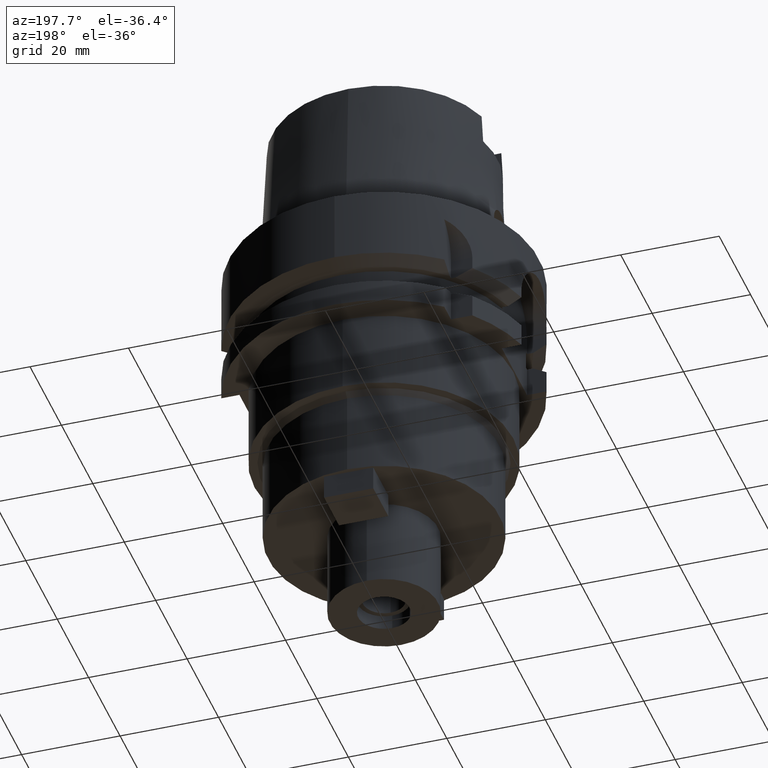
[diagram: clean part render]
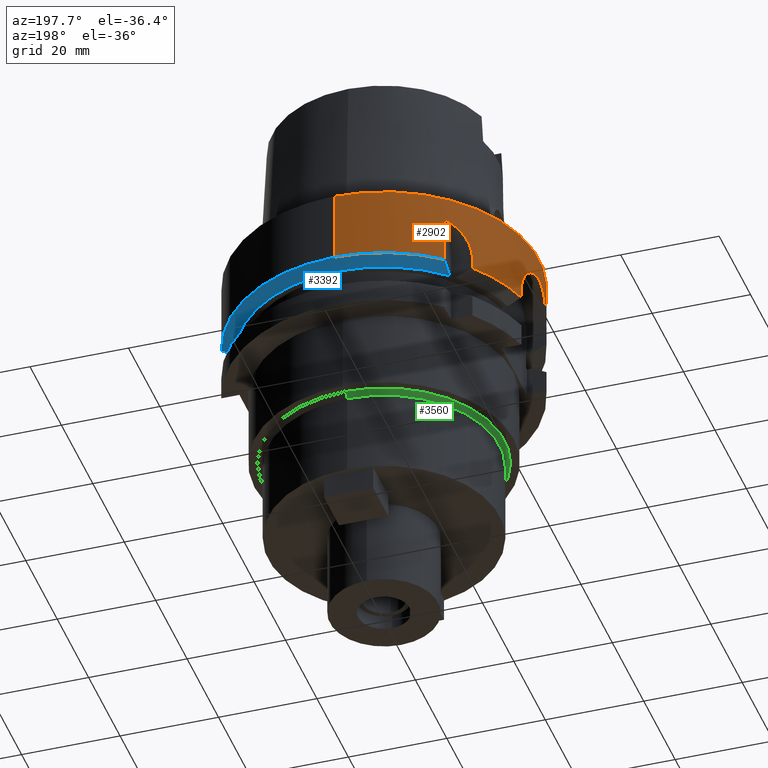
[diagram: same view with three faces highlighted in distinct colors, each labeled with its STEP entity id]
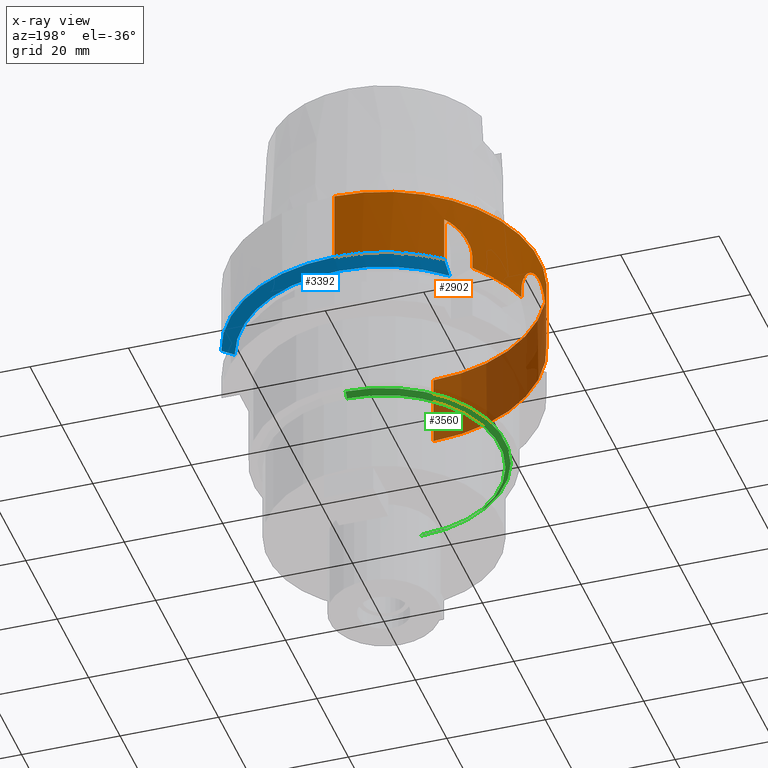
[diagram: x-ray of the same camera — body ghosted, the three highlighted faces saturated]
A machine part, auxiliary view with three faces highlighted in distinct colors.
The next image is the same camera in x-ray (body ghosted, the three faces saturated) — at least one of them is partly hidden behind the body in this view.
Their STEP definitions:

[orange] entity #2902 — the highlighted cylindrical surface (partial cylindrical patch) has radius 31.5 mm, axis along (0, 0, -1).
#595=CARTESIAN_POINT('',(0.E0,1.683889348828E-14,0.E0));
#596=DIRECTION('',(0.E0,0.E0,-1.E0));
#597=DIRECTION('',(0.E0,-1.E0,0.E0));
#598=AXIS2_PLACEMENT_3D('',#595,#596,#597);
#627=DIRECTION('',(3.142283924609E-7,2.582394108680E-7,-9.999999999999E-1));
#628=VECTOR('',#627,9.622511759751E0);
#629=CARTESIAN_POINT('',(-2.E1,2.433618704728E1,-5.000000000001E0));
#630=LINE('',#629,#628);
#634=DIRECTION('',(0.E0,-2.672583210396E-14,-1.E0));
#635=VECTOR('',#634,1.462250092524E1);
#636=CARTESIAN_POINT('',(0.E0,-3.15E1,0.E0));
#637=LINE('',#636,#635);
#641=DIRECTION('',(1.688335616044E-8,-6.429427644360E-8,1.E0));
#642=VECTOR('',#641,1.622501872245E0);
#643=CARTESIAN_POINT('',(-3.046719550055E1,-7.999999895683E0,
-1.462250187225E1));
#644=LINE('',#643,#642);
#648=DIRECTION('',(7.665110989785E-8,2.919222991865E-7,-1.E0));
#649=VECTOR('',#648,1.622496625400E0);
#650=CARTESIAN_POINT('',(-3.046719547316E1,8.E0,-1.3E1));
#651=LINE('',#650,#649);
#655=DIRECTION('',(-4.509932084601E-6,-5.487717633352E-6,9.999999999748E-1));
#656=VECTOR('',#655,2.510737643889E0);
#657=CARTESIAN_POINT('',(-2.433617572402E1,2.000001377822E1,-1.462245154749E1));
#658=LINE('',#657,#656);
#662=CARTESIAN_POINT('',(-2.433618704728E1,2.E1,-1.211171390366E1));
#663=CARTESIAN_POINT('',(-2.433618704728E1,2.E1,-1.187977389408E1));
#664=CARTESIAN_POINT('',(-2.431967291947E1,2.002011940752E1,-1.141747374557E1));
#665=CARTESIAN_POINT('',(-2.424524775313E1,2.011034044532E1,-1.072771843285E1));
#666=CARTESIAN_POINT('',(-2.411964497239E1,2.026106748439E1,-1.004479209659E1));
#667=CARTESIAN_POINT('',(-2.394165777285E1,2.047144492390E1,-9.375610134195E0));
#668=CARTESIAN_POINT('',(-2.370768155875E1,2.074243361496E1,-8.721129779079E0));
#669=CARTESIAN_POINT('',(-2.341496976854E1,2.107290185232E1,-8.088371049463E0));
#670=CARTESIAN_POINT('',(-2.305738389683E1,2.146431846637E1,-7.478998135942E0));
#671=CARTESIAN_POINT('',(-2.262953349177E1,2.191581832456E1,-6.899684623561E0));
#672=CARTESIAN_POINT('',(-2.212343929672E1,2.242769328893E1,-6.355025243639E0));
#673=CARTESIAN_POINT('',(-2.152829913445E1,2.300087867371E1,-5.850146352063E0));
#674=CARTESIAN_POINT('',(-2.083305665641E1,2.363404644432E1,-5.392532538670E0));
#675=CARTESIAN_POINT('',(-2.029155552754E1,2.409658046719E1,-5.123440524125E0));
#676=CARTESIAN_POINT('',(-2.E1,2.433618704728E1,-5.000000000001E0));
#781=CARTESIAN_POINT('',(0.E0,1.036372656198E-14,-1.462250092524E1));
#782=DIRECTION('',(0.E0,0.E0,1.E0));
#783=DIRECTION('',(-7.725773665802E-1,6.349206349206E-1,0.E0));
#784=AXIS2_PLACEMENT_3D('',#781,#782,#783);
#813=CARTESIAN_POINT('',(-3.046719547316E1,8.E0,-1.3E1));
#814=CARTESIAN_POINT('',(-3.046719547316E1,8.E0,-1.245224009794E1));
#815=CARTESIAN_POINT('',(-3.049727302637E1,7.887058350264E0,-1.135073932777E1));
#816=CARTESIAN_POINT('',(-3.062689474048E1,7.375462160481E0,-9.752102891546E0));
#817=CARTESIAN_POINT('',(-3.082074443426E1,6.532773675544E0,-8.278876909965E0));
#818=CARTESIAN_POINT('',(-3.104430627719E1,5.390237509872E0,-7.006967026591E0));
#819=CARTESIAN_POINT('',(-3.125563060175E1,4.008871036003E0,-6.008196342122E0));
#820=CARTESIAN_POINT('',(-3.141705820569E1,2.464778744838E0,-5.328000599761E0));
#821=CARTESIAN_POINT('',(-3.150356819385E1,8.304199367704E-1,
-4.985634645726E0));
#822=CARTESIAN_POINT('',(-3.150352681393E1,-8.321668192866E-1,
-4.985822560259E0));
#823=CARTESIAN_POINT('',(-3.141693350907E1,-2.466336997205E0,
-5.328506033274E0));
#824=CARTESIAN_POINT('',(-3.125544512094E1,-4.010327316593E0,
-6.009023094811E0));
#825=CARTESIAN_POINT('',(-3.104408258014E1,-5.391520309767E0,
-7.008128831518E0));
#826=CARTESIAN_POINT('',(-3.082053941874E1,-6.533720743367E0,
-8.280182523090E0));
#827=CARTESIAN_POINT('',(-3.062672190153E1,-7.376197391314E0,
-9.753750358691E0));
#828=CARTESIAN_POINT('',(-3.049718863966E1,-7.887319804456E0,
-1.135225939252E1));
#829=CARTESIAN_POINT('',(-3.046719547316E1,-8.E0,-1.245284899225E1));
#830=CARTESIAN_POINT('',(-3.046719547316E1,-8.E0,-1.3E1));
#1277=CARTESIAN_POINT('',(0.E0,1.036372656198E-14,-1.462250092524E1));
#1278=DIRECTION('',(0.E0,0.E0,1.E0));
#1279=DIRECTION('',(-9.672125547036E-1,-2.539682539683E-1,0.E0));
#1280=AXIS2_PLACEMENT_3D('',#1277,#1278,#1279);
#1300=DIRECTION('',(0.E0,2.721175632404E-14,-1.E0));
#1301=VECTOR('',#1300,1.462250092524E1);
#1302=CARTESIAN_POINT('',(0.E0,3.15E1,0.E0));
#1303=LINE('',#1302,#1301);
#1379=CARTESIAN_POINT('',(0.E0,1.036372656198E-14,-1.462250092524E1));
#1380=DIRECTION('',(0.E0,0.E0,1.E0));
#1381=DIRECTION('',(0.E0,1.E0,0.E0));
#1382=AXIS2_PLACEMENT_3D('',#1379,#1380,#1381);
#2233=CARTESIAN_POINT('',(0.E0,-3.15E1,0.E0));
#2234=CARTESIAN_POINT('',(0.E0,3.15E1,0.E0));
#2235=VERTEX_POINT('',#2233);
#2236=VERTEX_POINT('',#2234);
#2237=CARTESIAN_POINT('',(-2.E1,2.433618704728E1,-5.000000000001E0));
#2238=CARTESIAN_POINT('',(-1.999999697633E1,2.433618953219E1,
-1.462251175975E1));
#2239=VERTEX_POINT('',#2237);
#2240=VERTEX_POINT('',#2238);
#2241=CARTESIAN_POINT('',(0.E0,3.15E1,-1.462250092524E1));
#2242=VERTEX_POINT('',#2241);
#2243=CARTESIAN_POINT('',(0.E0,-3.15E1,-1.462250092524E1));
#2244=VERTEX_POINT('',#2243);
#2245=CARTESIAN_POINT('',(-3.046719547317E1,-8.000000000001E0,
-1.462250092524E1));
#2246=VERTEX_POINT('',#2245);
#2247=CARTESIAN_POINT('',(-3.046719547316E1,-8.E0,-1.3E1));
#2248=VERTEX_POINT('',#2247);
#2249=VERTEX_POINT('',#813);
#2250=CARTESIAN_POINT('',(-3.046719534880E1,8.000000473643E0,
-1.462249662540E1));
#2251=VERTEX_POINT('',#2250);
#2252=CARTESIAN_POINT('',(-2.433618704728E1,2.E1,-1.462250092524E1));
#2253=VERTEX_POINT('',#2252);
#2254=CARTESIAN_POINT('',(-2.433618704728E1,2.E1,-1.211171390366E1));
#2255=VERTEX_POINT('',#2254);
#2872=CARTESIAN_POINT('',(0.E0,1.683889348828E-14,3.75E1));
#2873=DIRECTION('',(0.E0,0.E0,-1.E0));
#2874=DIRECTION('',(0.E0,-1.E0,0.E0));
#2875=AXIS2_PLACEMENT_3D('',#2872,#2873,#2874);
#2876=CYLINDRICAL_SURFACE('',#2875,3.15E1);
#2878=ORIENTED_EDGE('',*,*,#2877,.T.);
#2880=ORIENTED_EDGE('',*,*,#2879,.F.);
#2882=ORIENTED_EDGE('',*,*,#2881,.F.);
#2883=ORIENTED_EDGE('',*,*,#2861,.F.);
#2885=ORIENTED_EDGE('',*,*,#2884,.T.);
#2887=ORIENTED_EDGE('',*,*,#2886,.F.);
#2889=ORIENTED_EDGE('',*,*,#2888,.T.);
#2891=ORIENTED_EDGE('',*,*,#2890,.F.);
#2893=ORIENTED_EDGE('',*,*,#2892,.T.);
#2895=ORIENTED_EDGE('',*,*,#2894,.F.);
#2897=ORIENTED_EDGE('',*,*,#2896,.T.);
#2899=ORIENTED_EDGE('',*,*,#2898,.T.);
#2900=EDGE_LOOP('',(#2878,#2880,#2882,#2883,#2885,#2887,#2889,#2891,#2893,#2895,
#2897,#2899));
#2901=FACE_OUTER_BOUND('',#2900,.F.);
#599=CIRCLE('',#598,3.15E1);
#677=B_SPLINE_CURVE_WITH_KNOTS('',3,(#662,#663,#664,#665,#666,#667,#668,#669,
#670,#671,#672,#673,#674,#675,#676),.UNSPECIFIED.,.F.,.F.,(4,1,1,1,1,1,1,1,1,1,
1,1,4),(0.E0,8.333333333333E-2,1.666666666667E-1,2.5E-1,3.333333333333E-1,
4.166666666667E-1,5.E-1,5.833333333333E-1,6.666666666667E-1,7.5E-1,
8.333333333333E-1,9.166666666667E-1,1.E0),.UNSPECIFIED.);
#785=CIRCLE('',#784,3.15E1);
#831=B_SPLINE_CURVE_WITH_KNOTS('',3,(#813,#814,#815,#816,#817,#818,#819,#820,
#821,#822,#823,#824,#825,#826,#827,#828,#829,#830),.UNSPECIFIED.,.F.,.F.,(4,1,1,
1,1,1,1,1,1,1,1,1,1,1,1,4),(0.E0,6.666666666667E-2,1.333333333333E-1,2.E-1,
2.666666666667E-1,3.333333333333E-1,4.E-1,4.666666666667E-1,5.333333333333E-1,
6.E-1,6.666666666667E-1,7.333333333333E-1,8.E-1,8.666666666667E-1,
9.333333333333E-1,1.E0),.UNSPECIFIED.);
#1281=CIRCLE('',#1280,3.15E1);
#1383=CIRCLE('',#1382,3.15E1);
#2861=EDGE_CURVE('',#2235,#2236,#599,.T.);
#2877=EDGE_CURVE('',#2239,#2240,#630,.T.);
#2879=EDGE_CURVE('',#2242,#2240,#1383,.T.);
#2881=EDGE_CURVE('',#2236,#2242,#1303,.T.);
#2884=EDGE_CURVE('',#2235,#2244,#637,.T.);
#2886=EDGE_CURVE('',#2246,#2244,#1281,.T.);
#2888=EDGE_CURVE('',#2246,#2248,#644,.T.);
#2890=EDGE_CURVE('',#2249,#2248,#831,.T.);
#2892=EDGE_CURVE('',#2249,#2251,#651,.T.);
#2894=EDGE_CURVE('',#2253,#2251,#785,.T.);
#2896=EDGE_CURVE('',#2253,#2255,#658,.T.);
#2898=EDGE_CURVE('',#2255,#2239,#677,.T.);
#2902=ADVANCED_FACE('',(#2901),#2876,.T.);

[blue] entity #3392 — the highlighted conical surface has half-angle 60 deg.
#741=CARTESIAN_POINT('',(0.E0,1.036372656198E-14,-1.6125E1));
#742=DIRECTION('',(0.E0,0.E0,1.E0));
#743=DIRECTION('',(9.502643111725E-1,3.114446000686E-1,0.E0));
#744=AXIS2_PLACEMENT_3D('',#741,#742,#743);
#749=CARTESIAN_POINT('',(0.E0,1.036372656198E-14,-1.6125E1));
#750=DIRECTION('',(0.E0,0.E0,1.E0));
#751=DIRECTION('',(0.E0,1.E0,0.E0));
#752=AXIS2_PLACEMENT_3D('',#749,#750,#751);
#1351=CARTESIAN_POINT('',(3.018691774019E1,8.999999852603E0,-1.462250211408E1));
#1352=CARTESIAN_POINT('',(2.988425157137E1,8.999999852603E0,-1.478996226214E1));
#1353=CARTESIAN_POINT('',(2.927875686522E1,8.999999971287E0,-1.512459368223E1));
#1354=CARTESIAN_POINT('',(2.836989113759E1,9.000000321592E0,-1.562540312488E1));
#1355=CARTESIAN_POINT('',(2.776361428260E1,8.999999268761E0,-1.595862594459E1));
#1356=CARTESIAN_POINT('',(2.746036359108E1,8.999999268761E0,-1.6125E1));
#1361=CARTESIAN_POINT('',(-1.999999697633E1,2.433618953219E1,
-1.462251175975E1));
#1362=CARTESIAN_POINT('',(-1.999999697633E1,2.394137587946E1,
-1.479861755539E1));
#1363=CARTESIAN_POINT('',(-1.999999953239E1,2.315738637918E1,
-1.514487758584E1));
#1364=CARTESIAN_POINT('',(-2.000000617215E1,2.199813620983E1,
-1.564583686101E1));
#1365=CARTESIAN_POINT('',(-1.999998591006E1,2.123643657273E1,
-1.596749397196E1));
#1366=CARTESIAN_POINT('',(-1.999998591006E1,2.085848287970E1,-1.6125E1));
#1371=CARTESIAN_POINT('',(0.E0,1.036372656198E-14,-1.462250092524E1));
#1372=DIRECTION('',(0.E0,0.E0,1.E0));
#1373=DIRECTION('',(9.583148474999E-1,2.857142857143E-1,0.E0));
#1374=AXIS2_PLACEMENT_3D('',#1371,#1372,#1373);
#1379=CARTESIAN_POINT('',(0.E0,1.036372656198E-14,-1.462250092524E1));
#1380=DIRECTION('',(0.E0,0.E0,1.E0));
#1381=DIRECTION('',(0.E0,1.E0,0.E0));
#1382=AXIS2_PLACEMENT_3D('',#1379,#1380,#1381);
#2238=CARTESIAN_POINT('',(-1.999999697633E1,2.433618953219E1,
-1.462251175975E1));
#2240=VERTEX_POINT('',#2238);
#2241=CARTESIAN_POINT('',(0.E0,3.15E1,-1.462250092524E1));
#2242=VERTEX_POINT('',#2241);
#2266=CARTESIAN_POINT('',(-1.999998591006E1,2.085848287970E1,-1.6125E1));
#2268=VERTEX_POINT('',#2266);
#2489=CARTESIAN_POINT('',(2.746036359108E1,8.999999268761E0,-1.6125E1));
#2490=VERTEX_POINT('',#2489);
#2491=CARTESIAN_POINT('',(2.644025879904E-14,2.889759526419E1,-1.6125E1));
#2492=VERTEX_POINT('',#2491);
#2493=VERTEX_POINT('',#1351);
#3379=CARTESIAN_POINT('',(0.E0,1.036372656198E-14,-1.537375046262E1));
#3380=DIRECTION('',(0.E0,0.E0,1.E0));
#3381=DIRECTION('',(0.E0,1.E0,0.E0));
#3382=AXIS2_PLACEMENT_3D('',#3379,#3380,#3381);
#3383=CONICAL_SURFACE('',#3382,3.019879763210E1,6.E1);
#3384=ORIENTED_EDGE('',*,*,#2910,.T.);
#3385=ORIENTED_EDGE('',*,*,#2944,.F.);
#3386=ORIENTED_EDGE('',*,*,#2942,.F.);
#3387=ORIENTED_EDGE('',*,*,#3374,.F.);
#3388=ORIENTED_EDGE('',*,*,#3344,.T.);
#3389=ORIENTED_EDGE('',*,*,#2879,.T.);
#3390=EDGE_LOOP('',(#3384,#3385,#3386,#3387,#3388,#3389));
#3391=FACE_OUTER_BOUND('',#3390,.F.);
#745=CIRCLE('',#744,2.889759526419E1);
#753=CIRCLE('',#752,2.889759526419E1);
#1357=B_SPLINE_CURVE_WITH_KNOTS('',3,(#1351,#1352,#1353,#1354,#1355,#1356),
.UNSPECIFIED.,.F.,.F.,(4,1,1,4),(0.E0,3.333333333333E-1,6.666666666667E-1,1.E0),
.UNSPECIFIED.);
#1367=B_SPLINE_CURVE_WITH_KNOTS('',3,(#1361,#1362,#1363,#1364,#1365,#1366),
.UNSPECIFIED.,.F.,.F.,(4,1,1,4),(0.E0,3.333333333333E-1,6.666666666667E-1,1.E0),
.UNSPECIFIED.);
#1375=CIRCLE('',#1374,3.15E1);
#1383=CIRCLE('',#1382,3.15E1);
#2879=EDGE_CURVE('',#2242,#2240,#1383,.T.);
#2910=EDGE_CURVE('',#2240,#2268,#1367,.T.);
#2942=EDGE_CURVE('',#2490,#2492,#745,.T.);
#2944=EDGE_CURVE('',#2492,#2268,#753,.T.);
#3344=EDGE_CURVE('',#2493,#2242,#1375,.T.);
#3374=EDGE_CURVE('',#2493,#2490,#1357,.T.);
#3392=ADVANCED_FACE('',(#3391),#3383,.T.);

[green] entity #3560 — the highlighted conical surface has half-angle 45 deg.
#1588=CARTESIAN_POINT('',(0.E0,0.E0,-4.2E1));
#1589=DIRECTION('',(0.E0,0.E0,-1.E0));
#1590=DIRECTION('',(0.E0,-1.E0,0.E0));
#1591=AXIS2_PLACEMENT_3D('',#1588,#1589,#1590);
#1604=DIRECTION('',(0.E0,7.071067811866E-1,-7.071067811865E-1));
#1605=VECTOR('',#1604,1.414213562373E0);
#1606=CARTESIAN_POINT('',(0.E0,-2.45E1,-4.2E1));
#1607=LINE('',#1606,#1605);
#1611=CARTESIAN_POINT('',(0.E0,0.E0,-4.3E1));
#1612=DIRECTION('',(0.E0,0.E0,-1.E0));
#1613=DIRECTION('',(0.E0,-1.E0,0.E0));
#1614=AXIS2_PLACEMENT_3D('',#1611,#1612,#1613);
#1619=DIRECTION('',(0.E0,-7.071067811865E-1,-7.071067811866E-1));
#1620=VECTOR('',#1619,1.414213562373E0);
#1621=CARTESIAN_POINT('',(0.E0,2.45E1,-4.2E1));
#1622=LINE('',#1621,#1620);
#2301=CARTESIAN_POINT('',(0.E0,-2.45E1,-4.2E1));
#2302=CARTESIAN_POINT('',(0.E0,2.45E1,-4.2E1));
#2303=VERTEX_POINT('',#2301);
#2304=VERTEX_POINT('',#2302);
#2305=CARTESIAN_POINT('',(0.E0,2.35E1,-4.3E1));
#2306=VERTEX_POINT('',#2305);
#2307=CARTESIAN_POINT('',(0.E0,-2.35E1,-4.3E1));
#2308=VERTEX_POINT('',#2307);
#3546=CARTESIAN_POINT('',(0.E0,0.E0,-4.25E1));
#3547=DIRECTION('',(0.E0,0.E0,1.E0));
#3548=DIRECTION('',(0.E0,1.E0,0.E0));
#3549=AXIS2_PLACEMENT_3D('',#3546,#3547,#3548);
#3550=CONICAL_SURFACE('',#3549,2.4E1,4.5E1);
#3552=ORIENTED_EDGE('',*,*,#3551,.F.);
#3553=ORIENTED_EDGE('',*,*,#3539,.F.);
#3555=ORIENTED_EDGE('',*,*,#3554,.T.);
#3557=ORIENTED_EDGE('',*,*,#3556,.T.);
#3558=EDGE_LOOP('',(#3552,#3553,#3555,#3557));
#3559=FACE_OUTER_BOUND('',#3558,.F.);
#1592=CIRCLE('',#1591,2.45E1);
#1615=CIRCLE('',#1614,2.35E1);
#3539=EDGE_CURVE('',#2303,#2304,#1592,.T.);
#3551=EDGE_CURVE('',#2304,#2306,#1622,.T.);
#3554=EDGE_CURVE('',#2303,#2308,#1607,.T.);
#3556=EDGE_CURVE('',#2308,#2306,#1615,.T.);
#3560=ADVANCED_FACE('',(#3559),#3550,.T.);